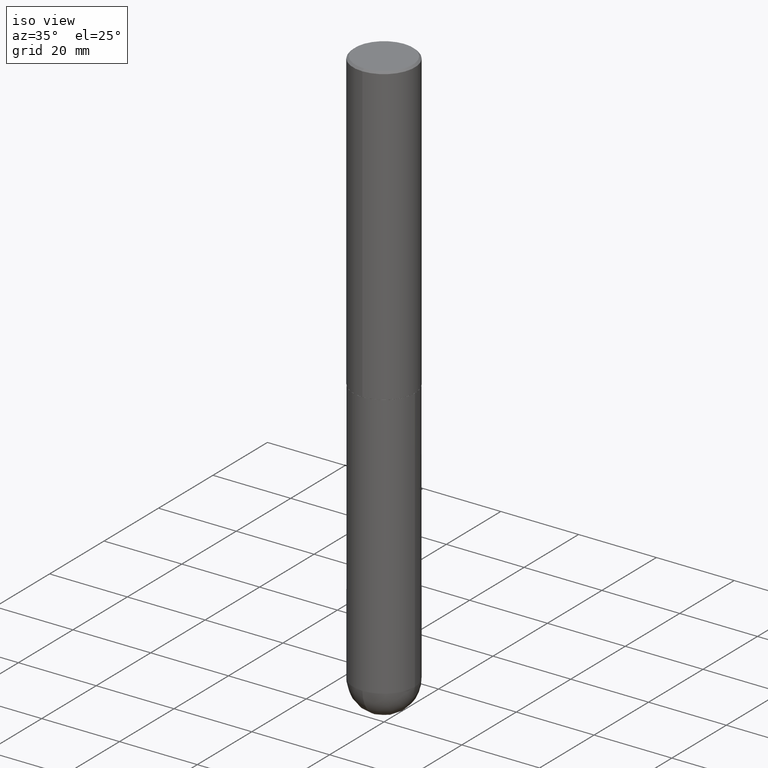
[diagram: clean part render]
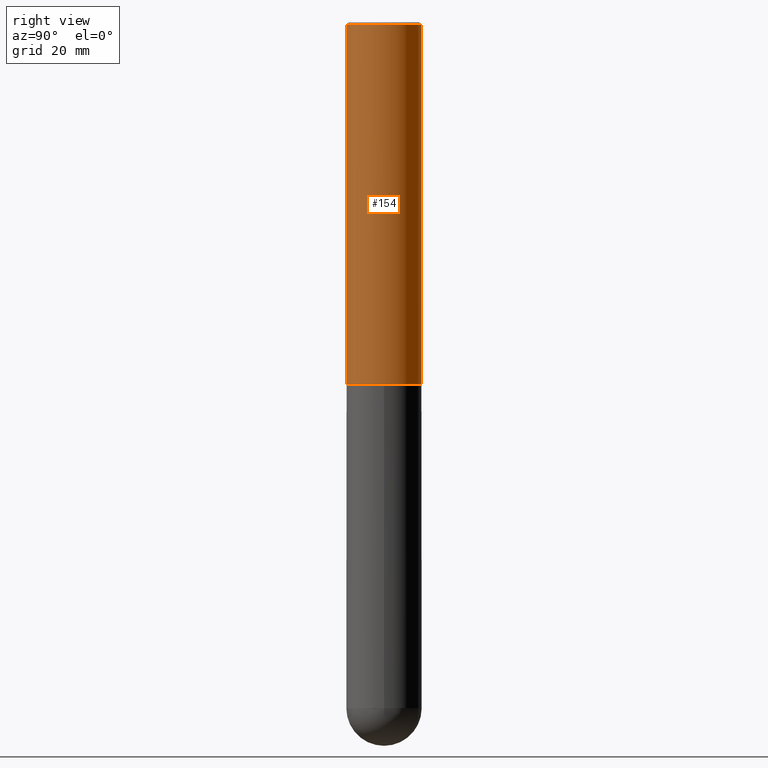
[diagram: tour spotlight — one face highlighted and labeled with its STEP entity id]
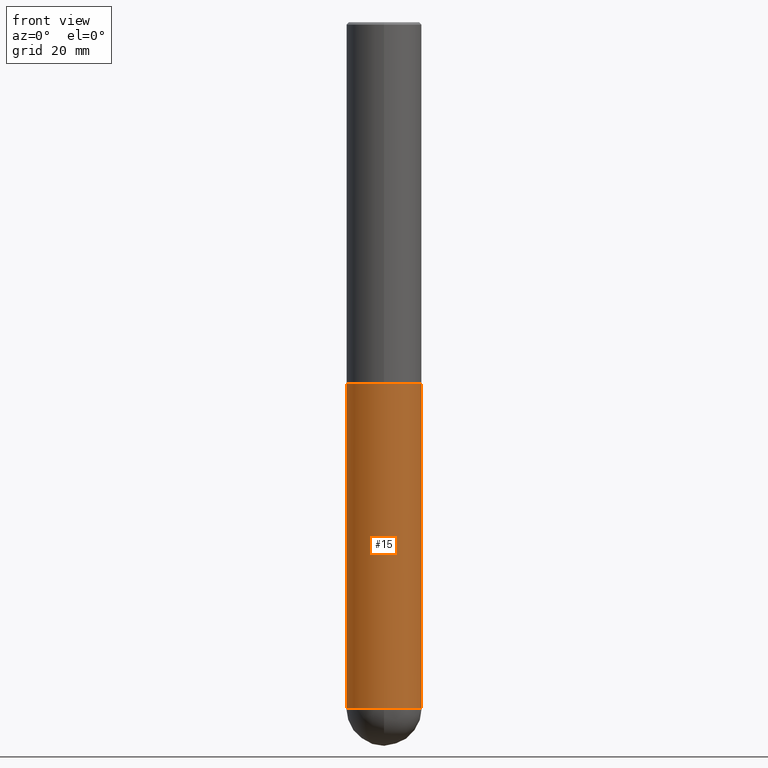
[diagram: tour spotlight — one face highlighted and labeled with its STEP entity id]
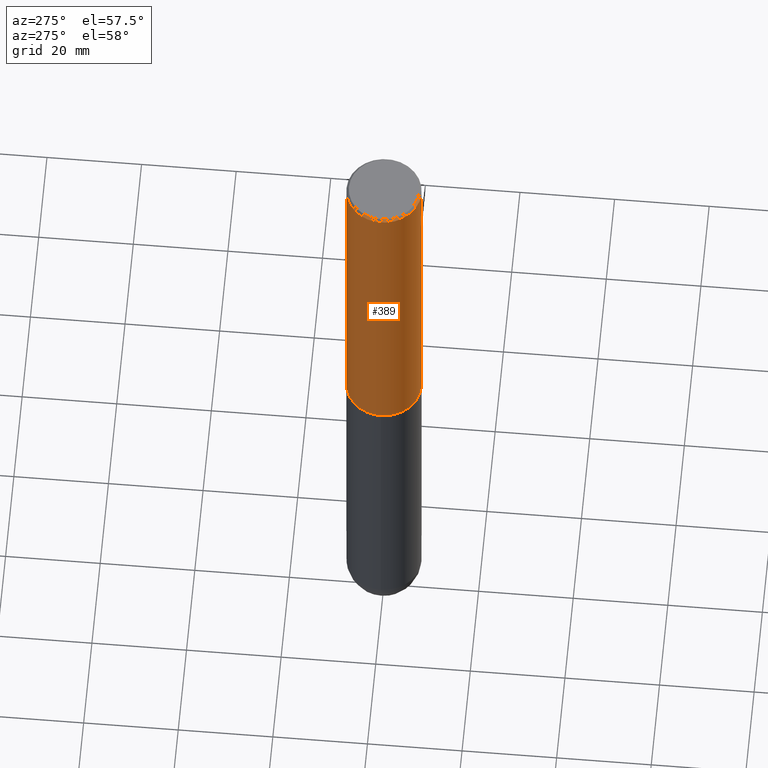
[diagram: tour spotlight — one face highlighted and labeled with its STEP entity id]
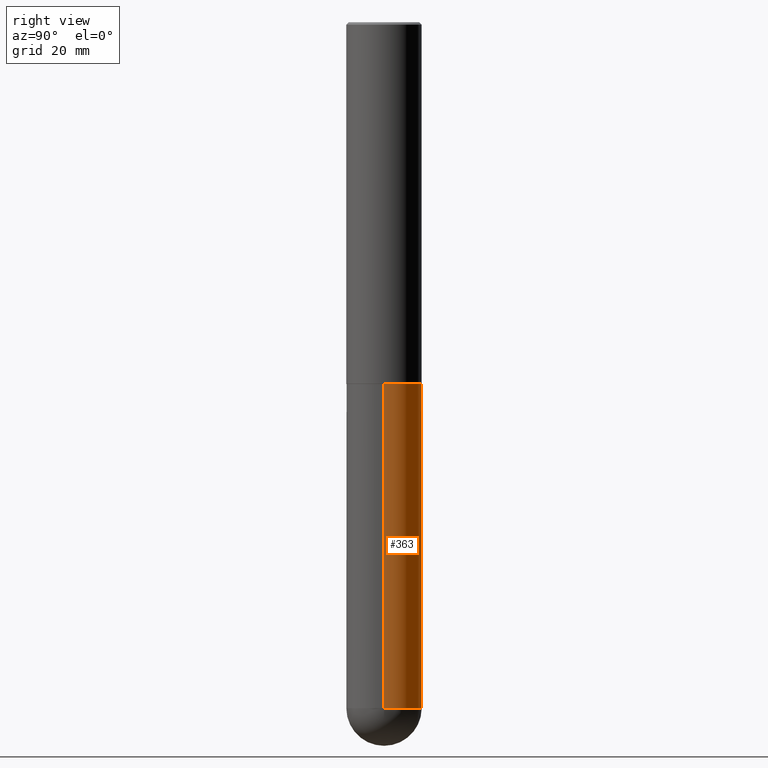
[diagram: tour spotlight — one face highlighted and labeled with its STEP entity id]
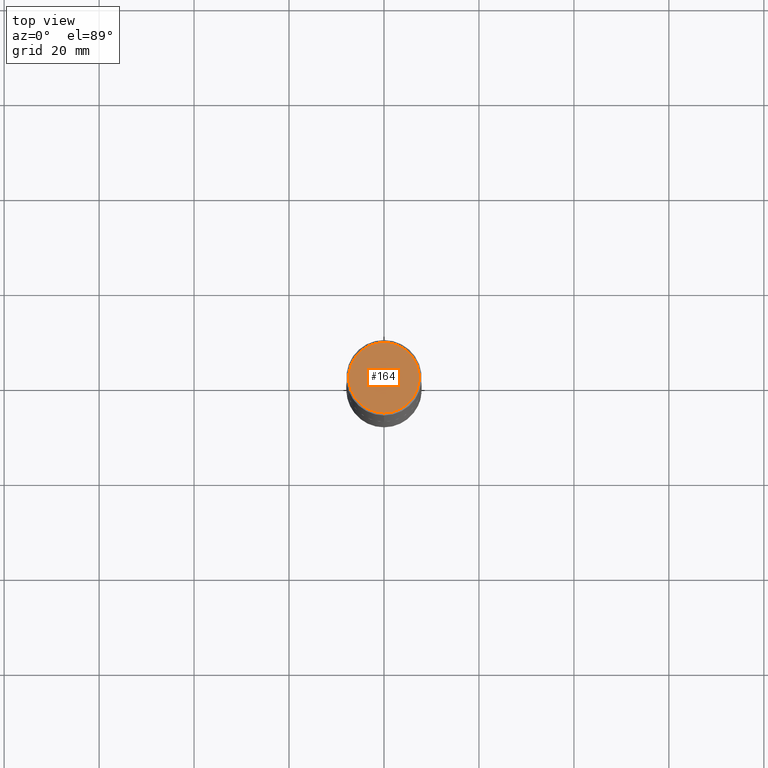
[diagram: tour spotlight — one face highlighted and labeled with its STEP entity id]
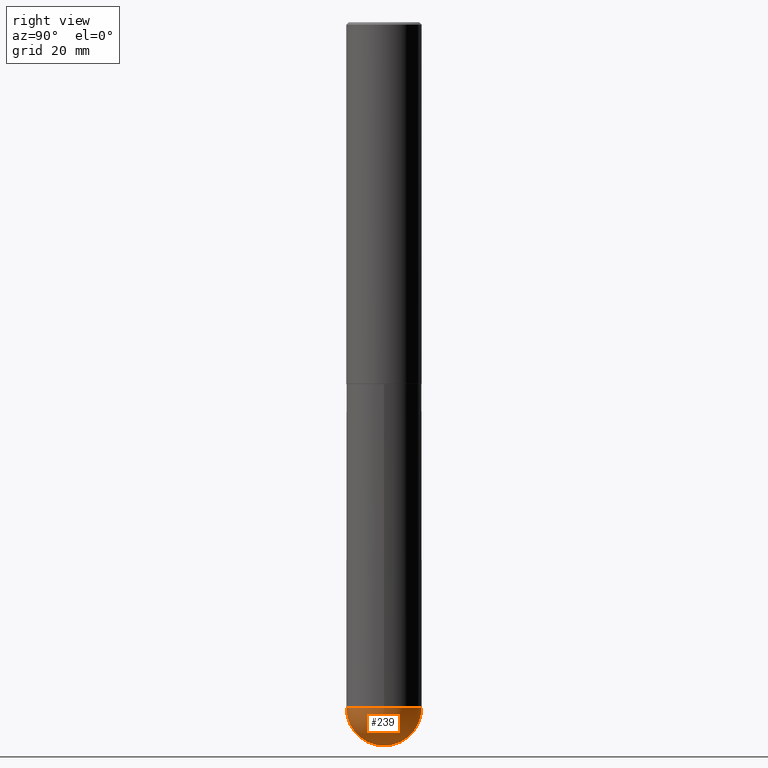
[diagram: tour spotlight — one face highlighted and labeled with its STEP entity id]
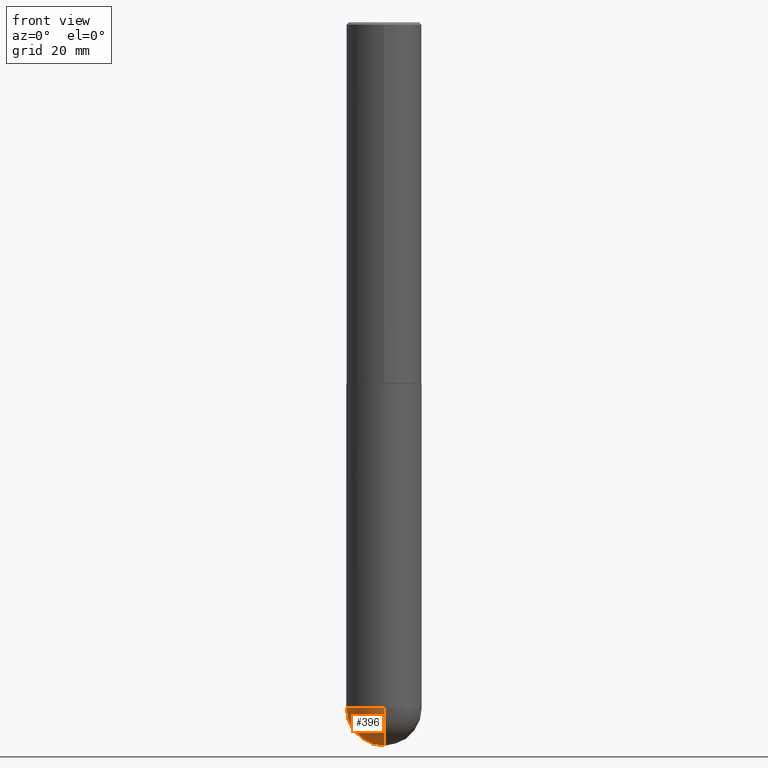
[diagram: tour spotlight — one face highlighted and labeled with its STEP entity id]
A machine part: a face-by-face anatomy tour. The part has 13 B-rep faces; the first image is the clean iso view, then the 7 largest visible faces are spotlighted one at a time (largest first), each with its STEP entity span.

Face 1 — right view, entity #154. In plain terms, the highlighted cylindrical surface (partial cylindrical patch) has radius 7.9375 mm, axis along (-0, 0, 1).
Definition (entity closure, byte-faithful):
#14 = ORIENTED_EDGE ( 'NONE', *, *, #52, .F. ) ;
#16 = VERTEX_POINT ( 'NONE', #67 ) ;
#23 = DIRECTION ( 'NONE',  ( -6.982962677686265133E-15, -1.000000000000000000, 3.496765431890256920E-15 ) ) ;
#26 = LINE ( 'NONE', #377, #30 ) ;
#28 = DIRECTION ( 'NONE',  ( -6.982962677686265922E-15, -1.000000000000000000, 3.496765431890251398E-15 ) ) ;
#30 = VECTOR ( 'NONE', #321, 39.37007874015748143 ) ;
#34 = LINE ( 'NONE', #173, #63 ) ;
#44 = CARTESIAN_POINT ( 'NONE',  ( -2.182175836776888138E-15, -0.3125000000000109357, -2.998999999999999222 ) ) ;
#52 = EDGE_CURVE ( 'NONE', #284, #16, #26, .T. ) ;
#55 = ORIENTED_EDGE ( 'NONE', *, *, #259, .T. ) ;
#63 = VECTOR ( 'NONE', #331, 39.37007874015748143 ) ;
#67 = CARTESIAN_POINT ( 'NONE',  ( -2.143905624303602824E-15, -0.3125000000000000555, -0.01999999999999897693 ) ) ;
#70 = CARTESIAN_POINT ( 'NONE',  ( 2.182175836776958741E-15, 0.3124999999999999445, -0.02000000000000116268 ) ) ;
#114 = CARTESIAN_POINT ( 'NONE',  ( 2.220446049250352524E-15, 0.3124999999999900635, -2.999000000000001442 ) ) ;
#130 = DIRECTION ( 'NONE',  ( -2.445022724150551752E-29, 3.492120153706083922E-15, 1.000000000000000000 ) ) ;
#140 = EDGE_CURVE ( 'NONE', #284, #368, #176, .T. ) ;
#147 = EDGE_CURVE ( 'NONE', #16, #188, #152, .T. ) ;
#152 = CIRCLE ( 'NONE', #379, 0.3125000000000000000 ) ;
#154 = ADVANCED_FACE ( 'NONE', ( #160 ), #286, .T. ) ;
#158 = ORIENTED_EDGE ( 'NONE', *, *, #147, .F. ) ;
#160 = FACE_OUTER_BOUND ( 'NONE', #364, .T. ) ;
#167 = CARTESIAN_POINT ( 'NONE',  ( 4.890045448301120179E-31, -6.984240307412191362E-17, -0.02000000000000006981 ) ) ;
#171 = DIRECTION ( 'NONE',  ( -2.445022724150551752E-29, 3.492120153706083922E-15, 1.000000000000000000 ) ) ;
#173 = CARTESIAN_POINT ( 'NONE',  ( 2.220446049250314659E-15, 0.3125000000000002776, -1.091287548033152310E-15 ) ) ;
#176 = CIRCLE ( 'NONE', #408, 0.3125000000000004996 ) ;
#188 = VERTEX_POINT ( 'NONE', #70 ) ;
#228 = CARTESIAN_POINT ( 'NONE',  ( 7.332623149727504925E-29, -1.047286834096454774E-14, -2.999000000000000554 ) ) ;
#259 = EDGE_CURVE ( 'NONE', #368, #188, #34, .T. ) ;
#284 = VERTEX_POINT ( 'NONE', #44 ) ;
#285 = AXIS2_PLACEMENT_3D ( 'NONE', #347, #405, #390 ) ;
#286 = CYLINDRICAL_SURFACE ( 'NONE', #285, 0.3125000000000002776 ) ;
#321 = DIRECTION ( 'NONE',  ( -2.445022724150551752E-29, 3.492120153706083922E-15, 1.000000000000000000 ) ) ;
#331 = DIRECTION ( 'NONE',  ( -2.445022724150551752E-29, 3.492120153706083922E-15, 1.000000000000000000 ) ) ;
#341 = ORIENTED_EDGE ( 'NONE', *, *, #140, .T. ) ;
#347 = CARTESIAN_POINT ( 'NONE',  ( 0.000000000000000000, 0.000000000000000000, 0.000000000000000000 ) ) ;
#364 = EDGE_LOOP ( 'NONE', ( #341, #55, #158, #14 ) ) ;
#368 = VERTEX_POINT ( 'NONE', #114 ) ;
#377 = CARTESIAN_POINT ( 'NONE',  ( -2.182175836776959925E-15, -0.3125000000000002776, 1.091287548033152310E-15 ) ) ;
#379 = AXIS2_PLACEMENT_3D ( 'NONE', #167, #130, #23 ) ;
#390 = DIRECTION ( 'NONE',  ( -6.982962677686265922E-15, -1.000000000000000000, 3.492120153706084316E-15 ) ) ;
#405 = DIRECTION ( 'NONE',  ( -2.445022724150551752E-29, 3.492120153706083922E-15, 1.000000000000000000 ) ) ;
#408 = AXIS2_PLACEMENT_3D ( 'NONE', #228, #171, #28 ) ;

Face 2 — front view, entity #15. In plain terms, the highlighted cylindrical surface (partial cylindrical patch) has radius 7.9375 mm, axis along (-0, 0, 1).
Definition (entity closure, byte-faithful):
#10 = EDGE_CURVE ( 'NONE', #212, #243, #225, .T. ) ;
#12 = VERTEX_POINT ( 'NONE', #316 ) ;
#15 = ADVANCED_FACE ( 'NONE', ( #351 ), #345, .T. ) ;
#18 = ORIENTED_EDGE ( 'NONE', *, *, #409, .F. ) ;
#41 = CARTESIAN_POINT ( 'NONE',  ( -2.220446049250179369E-15, -0.3125000000000206501, -5.687499999999999112 ) ) ;
#61 = DIRECTION ( 'NONE',  ( 1.000000000000000000, -6.982962677686266711E-15, 4.876176775795936353E-29 ) ) ;
#68 = CARTESIAN_POINT ( 'NONE',  ( -0.3125000000000000000, -1.294567601634960147E-14, -5.687500000000000000 ) ) ;
#73 = AXIS2_PLACEMENT_3D ( 'NONE', #382, #254, #61 ) ;
#75 = CARTESIAN_POINT ( 'NONE',  ( 0.3125000000000000000, -1.734829790237687290E-14, -5.687500000000000000 ) ) ;
#90 = EDGE_CURVE ( 'NONE', #179, #326, #128, .T. ) ;
#115 = EDGE_CURVE ( 'NONE', #243, #12, #411, .T. ) ;
#127 = DIRECTION ( 'NONE',  ( -2.445468806185136597E-29, 3.491481338843145583E-15, 1.000000000000000000 ) ) ;
#128 = LINE ( 'NONE', #255, #349 ) ;
#155 = CARTESIAN_POINT ( 'NONE',  ( 7.336406418555409790E-29, -1.047444401652943635E-14, -3.000000000000000444 ) ) ;
#161 = AXIS2_PLACEMENT_3D ( 'NONE', #155, #303, #246 ) ;
#179 = VERTEX_POINT ( 'NONE', #68 ) ;
#190 = AXIS2_PLACEMENT_3D ( 'NONE', #388, #230, #206 ) ;
#191 = EDGE_CURVE ( 'NONE', #179, #212, #266, .T. ) ;
#206 = DIRECTION ( 'NONE',  ( 1.000000000000000000, -6.982962677686262766E-15, 0.000000000000000000 ) ) ;
#212 = VERTEX_POINT ( 'NONE', #41 ) ;
#216 = EDGE_LOOP ( 'NONE', ( #282, #221, #308, #309, #18 ) ) ;
#221 = ORIENTED_EDGE ( 'NONE', *, *, #191, .T. ) ;
#222 = CARTESIAN_POINT ( 'NONE',  ( 1.390860383517796215E-28, -1.985780011467039117E-14, -5.687500000000000000 ) ) ;
#225 = CIRCLE ( 'NONE', #250, 0.3125000000000000000 ) ;
#227 = DIRECTION ( 'NONE',  ( -2.445468806185136877E-29, 3.491481338843145188E-15, 1.000000000000000000 ) ) ;
#230 = DIRECTION ( 'NONE',  ( -2.445468806185136597E-29, 3.491481338843145583E-15, 1.000000000000000000 ) ) ;
#243 = VERTEX_POINT ( 'NONE', #75 ) ;
#246 = DIRECTION ( 'NONE',  ( 1.000000000000000000, -6.982962677686269077E-15, 0.000000000000000000 ) ) ;
#250 = AXIS2_PLACEMENT_3D ( 'NONE', #222, #127, #412 ) ;
#254 = DIRECTION ( 'NONE',  ( -2.445468806185136597E-29, 3.491481338843145583E-15, 1.000000000000000000 ) ) ;
#255 = CARTESIAN_POINT ( 'NONE',  ( -0.3125000000000000000, 2.220446049250313081E-15, -1.537167215704658232E-29 ) ) ;
#258 = CARTESIAN_POINT ( 'NONE',  ( 0.3125000000000000000, -2.182175836776958347E-15, 1.523805242436230075E-29 ) ) ;
#261 = CARTESIAN_POINT ( 'NONE',  ( -0.3125000000000000000, -1.294567601634960147E-14, -3.000000000000000444 ) ) ;
#266 = CIRCLE ( 'NONE', #190, 0.3125000000000000000 ) ;
#282 = ORIENTED_EDGE ( 'NONE', *, *, #90, .F. ) ;
#289 = VECTOR ( 'NONE', #227, 39.37007874015748143 ) ;
#303 = DIRECTION ( 'NONE',  ( -2.445468806185136597E-29, 3.491481338843145583E-15, 1.000000000000000000 ) ) ;
#308 = ORIENTED_EDGE ( 'NONE', *, *, #10, .T. ) ;
#309 = ORIENTED_EDGE ( 'NONE', *, *, #115, .T. ) ;
#316 = CARTESIAN_POINT ( 'NONE',  ( 0.3125000000000000000, -1.265661985330639628E-14, -3.000000000000000444 ) ) ;
#318 = DIRECTION ( 'NONE',  ( -2.445468806185136877E-29, 3.491481338843145188E-15, 1.000000000000000000 ) ) ;
#326 = VERTEX_POINT ( 'NONE', #261 ) ;
#345 = CYLINDRICAL_SURFACE ( 'NONE', #73, 0.3125000000000000000 ) ;
#349 = VECTOR ( 'NONE', #318, 39.37007874015748143 ) ;
#351 = FACE_OUTER_BOUND ( 'NONE', #216, .T. ) ;
#382 = CARTESIAN_POINT ( 'NONE',  ( 0.000000000000000000, 0.000000000000000000, 0.000000000000000000 ) ) ;
#388 = CARTESIAN_POINT ( 'NONE',  ( 1.390860383517796215E-28, -1.985780011467039117E-14, -5.687500000000000000 ) ) ;
#393 = CIRCLE ( 'NONE', #161, 0.3125000000000000000 ) ;
#409 = EDGE_CURVE ( 'NONE', #326, #12, #393, .T. ) ;
#411 = LINE ( 'NONE', #258, #289 ) ;
#412 = DIRECTION ( 'NONE',  ( 1.000000000000000000, -6.982962677686262766E-15, 0.000000000000000000 ) ) ;

Face 3 — auxiliary view, entity #389. In plain terms, the highlighted cylindrical surface (partial cylindrical patch) has radius 7.9375 mm, axis along (-0, 0, 1).
Definition (entity closure, byte-faithful):
#13 = DIRECTION ( 'NONE',  ( -2.445022724150551752E-29, 3.492120153706083922E-15, 1.000000000000000000 ) ) ;
#16 = VERTEX_POINT ( 'NONE', #67 ) ;
#26 = LINE ( 'NONE', #377, #30 ) ;
#30 = VECTOR ( 'NONE', #321, 39.37007874015748143 ) ;
#34 = LINE ( 'NONE', #173, #63 ) ;
#39 = AXIS2_PLACEMENT_3D ( 'NONE', #358, #205, #103 ) ;
#44 = CARTESIAN_POINT ( 'NONE',  ( -2.182175836776888138E-15, -0.3125000000000109357, -2.998999999999999222 ) ) ;
#49 = FACE_OUTER_BOUND ( 'NONE', #142, .T. ) ;
#51 = CYLINDRICAL_SURFACE ( 'NONE', #97, 0.3125000000000002776 ) ;
#52 = EDGE_CURVE ( 'NONE', #284, #16, #26, .T. ) ;
#63 = VECTOR ( 'NONE', #331, 39.37007874015748143 ) ;
#67 = CARTESIAN_POINT ( 'NONE',  ( -2.143905624303602824E-15, -0.3125000000000000555, -0.01999999999999897693 ) ) ;
#70 = CARTESIAN_POINT ( 'NONE',  ( 2.182175836776958741E-15, 0.3124999999999999445, -0.02000000000000116268 ) ) ;
#78 = DIRECTION ( 'NONE',  ( -6.982962677686265922E-15, -1.000000000000000000, 3.492120153706084316E-15 ) ) ;
#97 = AXIS2_PLACEMENT_3D ( 'NONE', #365, #13, #78 ) ;
#103 = DIRECTION ( 'NONE',  ( -6.982962677686265922E-15, -1.000000000000000000, 3.496765431890251398E-15 ) ) ;
#106 = CIRCLE ( 'NONE', #39, 0.3125000000000004996 ) ;
#109 = CARTESIAN_POINT ( 'NONE',  ( 4.890045448301120179E-31, -6.984240307412191362E-17, -0.02000000000000006981 ) ) ;
#114 = CARTESIAN_POINT ( 'NONE',  ( 2.220446049250352524E-15, 0.3124999999999900635, -2.999000000000001442 ) ) ;
#142 = EDGE_LOOP ( 'NONE', ( #166, #241, #398, #278 ) ) ;
#166 = ORIENTED_EDGE ( 'NONE', *, *, #259, .F. ) ;
#173 = CARTESIAN_POINT ( 'NONE',  ( 2.220446049250314659E-15, 0.3125000000000002776, -1.091287548033152310E-15 ) ) ;
#175 = DIRECTION ( 'NONE',  ( -6.982962677686265133E-15, -1.000000000000000000, 3.496765431890256920E-15 ) ) ;
#183 = CIRCLE ( 'NONE', #245, 0.3125000000000000000 ) ;
#188 = VERTEX_POINT ( 'NONE', #70 ) ;
#205 = DIRECTION ( 'NONE',  ( -2.445022724150551752E-29, 3.492120153706083922E-15, 1.000000000000000000 ) ) ;
#209 = DIRECTION ( 'NONE',  ( -2.445022724150551752E-29, 3.492120153706083922E-15, 1.000000000000000000 ) ) ;
#210 = EDGE_CURVE ( 'NONE', #188, #16, #183, .T. ) ;
#234 = EDGE_CURVE ( 'NONE', #368, #284, #106, .T. ) ;
#241 = ORIENTED_EDGE ( 'NONE', *, *, #234, .T. ) ;
#245 = AXIS2_PLACEMENT_3D ( 'NONE', #109, #209, #175 ) ;
#259 = EDGE_CURVE ( 'NONE', #368, #188, #34, .T. ) ;
#278 = ORIENTED_EDGE ( 'NONE', *, *, #210, .F. ) ;
#284 = VERTEX_POINT ( 'NONE', #44 ) ;
#321 = DIRECTION ( 'NONE',  ( -2.445022724150551752E-29, 3.492120153706083922E-15, 1.000000000000000000 ) ) ;
#331 = DIRECTION ( 'NONE',  ( -2.445022724150551752E-29, 3.492120153706083922E-15, 1.000000000000000000 ) ) ;
#358 = CARTESIAN_POINT ( 'NONE',  ( 7.332623149727504925E-29, -1.047286834096454774E-14, -2.999000000000000554 ) ) ;
#365 = CARTESIAN_POINT ( 'NONE',  ( 0.000000000000000000, 0.000000000000000000, 0.000000000000000000 ) ) ;
#368 = VERTEX_POINT ( 'NONE', #114 ) ;
#377 = CARTESIAN_POINT ( 'NONE',  ( -2.182175836776959925E-15, -0.3125000000000002776, 1.091287548033152310E-15 ) ) ;
#389 = ADVANCED_FACE ( 'NONE', ( #49 ), #51, .T. ) ;
#398 = ORIENTED_EDGE ( 'NONE', *, *, #52, .T. ) ;

Face 4 — right view, entity #363. In plain terms, the highlighted cylindrical surface (partial cylindrical patch) has radius 7.9375 mm, axis along (-0, 0, 1).
Definition (entity closure, byte-faithful):
#2 = FACE_OUTER_BOUND ( 'NONE', #50, .T. ) ;
#6 = EDGE_CURVE ( 'NONE', #12, #326, #279, .T. ) ;
#12 = VERTEX_POINT ( 'NONE', #316 ) ;
#37 = CARTESIAN_POINT ( 'NONE',  ( 2.182175836777099159E-15, 0.3124999999999804601, -5.687500000000000888 ) ) ;
#43 = ORIENTED_EDGE ( 'NONE', *, *, #6, .F. ) ;
#50 = EDGE_LOOP ( 'NONE', ( #123, #304, #43, #92, #119 ) ) ;
#59 = DIRECTION ( 'NONE',  ( -2.445468806185136597E-29, 3.491481338843145583E-15, 1.000000000000000000 ) ) ;
#68 = CARTESIAN_POINT ( 'NONE',  ( -0.3125000000000000000, -1.294567601634960147E-14, -5.687500000000000000 ) ) ;
#75 = CARTESIAN_POINT ( 'NONE',  ( 0.3125000000000000000, -1.734829790237687290E-14, -5.687500000000000000 ) ) ;
#79 = DIRECTION ( 'NONE',  ( -2.445468806185136597E-29, 3.491481338843145583E-15, 1.000000000000000000 ) ) ;
#90 = EDGE_CURVE ( 'NONE', #179, #326, #128, .T. ) ;
#92 = ORIENTED_EDGE ( 'NONE', *, *, #115, .F. ) ;
#93 = DIRECTION ( 'NONE',  ( 1.000000000000000000, -6.982962677686269077E-15, 0.000000000000000000 ) ) ;
#98 = EDGE_CURVE ( 'NONE', #192, #179, #181, .T. ) ;
#107 = CARTESIAN_POINT ( 'NONE',  ( 0.000000000000000000, 0.000000000000000000, 0.000000000000000000 ) ) ;
#115 = EDGE_CURVE ( 'NONE', #243, #12, #411, .T. ) ;
#119 = ORIENTED_EDGE ( 'NONE', *, *, #170, .T. ) ;
#123 = ORIENTED_EDGE ( 'NONE', *, *, #98, .T. ) ;
#126 = CARTESIAN_POINT ( 'NONE',  ( 1.390860383517796215E-28, -1.985780011467039117E-14, -5.687500000000000000 ) ) ;
#128 = LINE ( 'NONE', #255, #349 ) ;
#170 = EDGE_CURVE ( 'NONE', #243, #192, #334, .T. ) ;
#179 = VERTEX_POINT ( 'NONE', #68 ) ;
#181 = CIRCLE ( 'NONE', #189, 0.3125000000000000000 ) ;
#189 = AXIS2_PLACEMENT_3D ( 'NONE', #126, #59, #381 ) ;
#192 = VERTEX_POINT ( 'NONE', #37 ) ;
#207 = AXIS2_PLACEMENT_3D ( 'NONE', #107, #233, #305 ) ;
#219 = AXIS2_PLACEMENT_3D ( 'NONE', #362, #79, #93 ) ;
#227 = DIRECTION ( 'NONE',  ( -2.445468806185136877E-29, 3.491481338843145188E-15, 1.000000000000000000 ) ) ;
#233 = DIRECTION ( 'NONE',  ( -2.445468806185136597E-29, 3.491481338843145583E-15, 1.000000000000000000 ) ) ;
#243 = VERTEX_POINT ( 'NONE', #75 ) ;
#255 = CARTESIAN_POINT ( 'NONE',  ( -0.3125000000000000000, 2.220446049250313081E-15, -1.537167215704658232E-29 ) ) ;
#258 = CARTESIAN_POINT ( 'NONE',  ( 0.3125000000000000000, -2.182175836776958347E-15, 1.523805242436230075E-29 ) ) ;
#261 = CARTESIAN_POINT ( 'NONE',  ( -0.3125000000000000000, -1.294567601634960147E-14, -3.000000000000000444 ) ) ;
#271 = CARTESIAN_POINT ( 'NONE',  ( 1.390860383517796215E-28, -1.985780011467039117E-14, -5.687500000000000000 ) ) ;
#279 = CIRCLE ( 'NONE', #219, 0.3125000000000000000 ) ;
#289 = VECTOR ( 'NONE', #227, 39.37007874015748143 ) ;
#304 = ORIENTED_EDGE ( 'NONE', *, *, #90, .T. ) ;
#305 = DIRECTION ( 'NONE',  ( 1.000000000000000000, -6.982962677686266711E-15, 4.876176775795936353E-29 ) ) ;
#312 = AXIS2_PLACEMENT_3D ( 'NONE', #271, #327, #359 ) ;
#316 = CARTESIAN_POINT ( 'NONE',  ( 0.3125000000000000000, -1.265661985330639628E-14, -3.000000000000000444 ) ) ;
#318 = DIRECTION ( 'NONE',  ( -2.445468806185136877E-29, 3.491481338843145188E-15, 1.000000000000000000 ) ) ;
#326 = VERTEX_POINT ( 'NONE', #261 ) ;
#327 = DIRECTION ( 'NONE',  ( -2.445468806185136597E-29, 3.491481338843145583E-15, 1.000000000000000000 ) ) ;
#334 = CIRCLE ( 'NONE', #312, 0.3125000000000000000 ) ;
#349 = VECTOR ( 'NONE', #318, 39.37007874015748143 ) ;
#359 = DIRECTION ( 'NONE',  ( 1.000000000000000000, -6.982962677686262766E-15, 0.000000000000000000 ) ) ;
#362 = CARTESIAN_POINT ( 'NONE',  ( 7.336406418555409790E-29, -1.047444401652943635E-14, -3.000000000000000444 ) ) ;
#363 = ADVANCED_FACE ( 'NONE', ( #2 ), #387, .T. ) ;
#381 = DIRECTION ( 'NONE',  ( 1.000000000000000000, -6.982962677686262766E-15, 0.000000000000000000 ) ) ;
#387 = CYLINDRICAL_SURFACE ( 'NONE', #207, 0.3125000000000000000 ) ;
#411 = LINE ( 'NONE', #258, #289 ) ;

Face 5 — top view, entity #164. In plain terms, the highlighted planar face has unit normal (0, -0, -1).
Definition (entity closure, byte-faithful):
#3 = EDGE_LOOP ( 'NONE', ( #315, #80 ) ) ;
#45 = AXIS2_PLACEMENT_3D ( 'NONE', #229, #353, #287 ) ;
#80 = ORIENTED_EDGE ( 'NONE', *, *, #122, .T. ) ;
#82 = EDGE_CURVE ( 'NONE', #256, #156, #143, .T. ) ;
#99 = DIRECTION ( 'NONE',  ( -6.982962677686265922E-15, -1.000000000000000000, 3.492120153706083922E-15 ) ) ;
#108 = DIRECTION ( 'NONE',  ( 2.445022724150551191E-29, -3.492120153706083922E-15, -1.000000000000000000 ) ) ;
#122 = EDGE_CURVE ( 'NONE', #156, #256, #373, .T. ) ;
#124 = AXIS2_PLACEMENT_3D ( 'NONE', #268, #108, #384 ) ;
#138 = CARTESIAN_POINT ( 'NONE',  ( -2.075300644325891437E-15, -0.2925000000000010369, -4.122761172855970597E-17 ) ) ;
#139 = FACE_OUTER_BOUND ( 'NONE', #3, .T. ) ;
#143 = CIRCLE ( 'NONE', #45, 0.2925000000000010369 ) ;
#156 = VERTEX_POINT ( 'NONE', #138 ) ;
#164 = ADVANCED_FACE ( 'NONE', ( #139 ), #269, .F. ) ;
#165 = DIRECTION ( 'NONE',  ( -2.445022724150551752E-29, 3.492120153706083922E-15, 1.000000000000000000 ) ) ;
#198 = CARTESIAN_POINT ( 'NONE',  ( 2.598259038436874655E-44, -3.710980950423145144E-30, -1.062672756687592845E-15 ) ) ;
#208 = CARTESIAN_POINT ( 'NONE',  ( 2.112346210000098993E-15, 0.2925000000000010369, -2.084117901646626065E-15 ) ) ;
#229 = CARTESIAN_POINT ( 'NONE',  ( 2.598259038436874655E-44, -3.710980950423145144E-30, -1.062672756687592845E-15 ) ) ;
#256 = VERTEX_POINT ( 'NONE', #208 ) ;
#268 = CARTESIAN_POINT ( 'NONE',  ( 2.042516583223240034E-15, 0.2925000000000010369, -1.552781523302829741E-15 ) ) ;
#269 = PLANE ( 'NONE',  #124 ) ;
#287 = DIRECTION ( 'NONE',  ( -6.982962677686265922E-15, -1.000000000000000000, 3.492120153706083922E-15 ) ) ;
#315 = ORIENTED_EDGE ( 'NONE', *, *, #82, .T. ) ;
#353 = DIRECTION ( 'NONE',  ( -2.445022724150551752E-29, 3.492120153706083922E-15, 1.000000000000000000 ) ) ;
#373 = CIRCLE ( 'NONE', #403, 0.2925000000000010369 ) ;
#384 = DIRECTION ( 'NONE',  ( 6.982962677686265922E-15, 1.000000000000000000, -3.492120153706083922E-15 ) ) ;
#403 = AXIS2_PLACEMENT_3D ( 'NONE', #198, #165, #99 ) ;

Face 6 — right view, entity #239. In plain terms, the highlighted spherical surface has radius 7.9375 mm.
Definition (entity closure, byte-faithful):
#10 = EDGE_CURVE ( 'NONE', #212, #243, #225, .T. ) ;
#37 = CARTESIAN_POINT ( 'NONE',  ( 2.182175836777099159E-15, 0.3124999999999804601, -5.687500000000000888 ) ) ;
#41 = CARTESIAN_POINT ( 'NONE',  ( -2.220446049250179369E-15, -0.3125000000000206501, -5.687499999999999112 ) ) ;
#42 = EDGE_CURVE ( 'NONE', #336, #212, #244, .T. ) ;
#48 = ORIENTED_EDGE ( 'NONE', *, *, #10, .F. ) ;
#57 = ORIENTED_EDGE ( 'NONE', *, *, #170, .F. ) ;
#72 = SPHERICAL_SURFACE ( 'NONE', #117, 0.3125000000000011102 ) ;
#75 = CARTESIAN_POINT ( 'NONE',  ( 0.3125000000000000000, -1.734829790237687290E-14, -5.687500000000000000 ) ) ;
#77 = DIRECTION ( 'NONE',  ( -1.000000000000000000, 6.982962677686265922E-15, -4.883557194083112901E-29 ) ) ;
#113 = ORIENTED_EDGE ( 'NONE', *, *, #277, .T. ) ;
#117 = AXIS2_PLACEMENT_3D ( 'NONE', #177, #77, #236 ) ;
#127 = DIRECTION ( 'NONE',  ( -2.445468806185136597E-29, 3.491481338843145583E-15, 1.000000000000000000 ) ) ;
#170 = EDGE_CURVE ( 'NONE', #243, #192, #334, .T. ) ;
#177 = CARTESIAN_POINT ( 'NONE',  ( 1.357748405726407927E-28, -2.033198248281044304E-14, -5.687500000000000000 ) ) ;
#192 = VERTEX_POINT ( 'NONE', #37 ) ;
#197 = DIRECTION ( 'NONE',  ( -7.105427357601000281E-15, -1.000000000000000000, 0.000000000000000000 ) ) ;
#212 = VERTEX_POINT ( 'NONE', #41 ) ;
#215 = ORIENTED_EDGE ( 'NONE', *, *, #42, .F. ) ;
#222 = CARTESIAN_POINT ( 'NONE',  ( 1.390860383517796215E-28, -1.985780011467039117E-14, -5.687500000000000000 ) ) ;
#225 = CIRCLE ( 'NONE', #250, 0.3125000000000000000 ) ;
#231 = CIRCLE ( 'NONE', #366, 0.3125000000000011102 ) ;
#236 = DIRECTION ( 'NONE',  ( 6.982962677686265922E-15, 1.000000000000000000, -3.496765431890244692E-15 ) ) ;
#238 = DIRECTION ( 'NONE',  ( 6.982962677686265922E-15, 1.000000000000000000, 0.000000000000000000 ) ) ;
#239 = ADVANCED_FACE ( 'NONE', ( #361 ), #72, .T. ) ;
#243 = VERTEX_POINT ( 'NONE', #75 ) ;
#244 = CIRCLE ( 'NONE', #263, 0.3125000000000011102 ) ;
#250 = AXIS2_PLACEMENT_3D ( 'NONE', #222, #127, #412 ) ;
#263 = AXIS2_PLACEMENT_3D ( 'NONE', #314, #288, #197 ) ;
#264 = CARTESIAN_POINT ( 'NONE',  ( 1.357748405726407927E-28, -2.033198248281044304E-14, -5.687500000000000000 ) ) ;
#271 = CARTESIAN_POINT ( 'NONE',  ( 1.390860383517796215E-28, -1.985780011467039117E-14, -5.687500000000000000 ) ) ;
#277 = EDGE_CURVE ( 'NONE', #336, #192, #231, .T. ) ;
#281 = EDGE_LOOP ( 'NONE', ( #215, #113, #57, #48 ) ) ;
#288 = DIRECTION ( 'NONE',  ( -1.000000000000000000, 7.105427357601001070E-15, -4.926315508542082329E-29 ) ) ;
#293 = CARTESIAN_POINT ( 'NONE',  ( 1.435505503246536289E-28, -2.140393529496225274E-14, -6.000000000000001776 ) ) ;
#312 = AXIS2_PLACEMENT_3D ( 'NONE', #271, #327, #359 ) ;
#314 = CARTESIAN_POINT ( 'NONE',  ( 1.357748405726407927E-28, -2.033198248281044304E-14, -5.687500000000000000 ) ) ;
#327 = DIRECTION ( 'NONE',  ( -2.445468806185136597E-29, 3.491481338843145583E-15, 1.000000000000000000 ) ) ;
#334 = CIRCLE ( 'NONE', #312, 0.3125000000000000000 ) ;
#336 = VERTEX_POINT ( 'NONE', #293 ) ;
#356 = DIRECTION ( 'NONE',  ( 1.000000000000000000, -6.982962677686265922E-15, 4.883557194083112340E-29 ) ) ;
#359 = DIRECTION ( 'NONE',  ( 1.000000000000000000, -6.982962677686262766E-15, 0.000000000000000000 ) ) ;
#361 = FACE_OUTER_BOUND ( 'NONE', #281, .T. ) ;
#366 = AXIS2_PLACEMENT_3D ( 'NONE', #264, #356, #238 ) ;
#412 = DIRECTION ( 'NONE',  ( 1.000000000000000000, -6.982962677686262766E-15, 0.000000000000000000 ) ) ;

Face 7 — front view, entity #396. In plain terms, the highlighted spherical surface has radius 7.9375 mm.
Definition (entity closure, byte-faithful):
#17 = DIRECTION ( 'NONE',  ( 6.982962677686265922E-15, 1.000000000000000000, -3.496765431890244692E-15 ) ) ;
#37 = CARTESIAN_POINT ( 'NONE',  ( 2.182175836777099159E-15, 0.3124999999999804601, -5.687500000000000888 ) ) ;
#41 = CARTESIAN_POINT ( 'NONE',  ( -2.220446049250179369E-15, -0.3125000000000206501, -5.687499999999999112 ) ) ;
#42 = EDGE_CURVE ( 'NONE', #336, #212, #244, .T. ) ;
#59 = DIRECTION ( 'NONE',  ( -2.445468806185136597E-29, 3.491481338843145583E-15, 1.000000000000000000 ) ) ;
#68 = CARTESIAN_POINT ( 'NONE',  ( -0.3125000000000000000, -1.294567601634960147E-14, -5.687500000000000000 ) ) ;
#85 = ORIENTED_EDGE ( 'NONE', *, *, #191, .F. ) ;
#98 = EDGE_CURVE ( 'NONE', #192, #179, #181, .T. ) ;
#126 = CARTESIAN_POINT ( 'NONE',  ( 1.390860383517796215E-28, -1.985780011467039117E-14, -5.687500000000000000 ) ) ;
#137 = ORIENTED_EDGE ( 'NONE', *, *, #42, .T. ) ;
#146 = CARTESIAN_POINT ( 'NONE',  ( 1.357748405726407927E-28, -2.033198248281044304E-14, -5.687500000000000000 ) ) ;
#179 = VERTEX_POINT ( 'NONE', #68 ) ;
#181 = CIRCLE ( 'NONE', #189, 0.3125000000000000000 ) ;
#187 = DIRECTION ( 'NONE',  ( -1.000000000000000000, 6.982962677686265922E-15, -4.883557194083112901E-29 ) ) ;
#189 = AXIS2_PLACEMENT_3D ( 'NONE', #126, #59, #381 ) ;
#190 = AXIS2_PLACEMENT_3D ( 'NONE', #388, #230, #206 ) ;
#191 = EDGE_CURVE ( 'NONE', #179, #212, #266, .T. ) ;
#192 = VERTEX_POINT ( 'NONE', #37 ) ;
#197 = DIRECTION ( 'NONE',  ( -7.105427357601000281E-15, -1.000000000000000000, 0.000000000000000000 ) ) ;
#206 = DIRECTION ( 'NONE',  ( 1.000000000000000000, -6.982962677686262766E-15, 0.000000000000000000 ) ) ;
#212 = VERTEX_POINT ( 'NONE', #41 ) ;
#220 = SPHERICAL_SURFACE ( 'NONE', #380, 0.3125000000000011102 ) ;
#230 = DIRECTION ( 'NONE',  ( -2.445468806185136597E-29, 3.491481338843145583E-15, 1.000000000000000000 ) ) ;
#231 = CIRCLE ( 'NONE', #366, 0.3125000000000011102 ) ;
#238 = DIRECTION ( 'NONE',  ( 6.982962677686265922E-15, 1.000000000000000000, 0.000000000000000000 ) ) ;
#244 = CIRCLE ( 'NONE', #263, 0.3125000000000011102 ) ;
#248 = ORIENTED_EDGE ( 'NONE', *, *, #277, .F. ) ;
#263 = AXIS2_PLACEMENT_3D ( 'NONE', #314, #288, #197 ) ;
#264 = CARTESIAN_POINT ( 'NONE',  ( 1.357748405726407927E-28, -2.033198248281044304E-14, -5.687500000000000000 ) ) ;
#266 = CIRCLE ( 'NONE', #190, 0.3125000000000000000 ) ;
#277 = EDGE_CURVE ( 'NONE', #336, #192, #231, .T. ) ;
#288 = DIRECTION ( 'NONE',  ( -1.000000000000000000, 7.105427357601001070E-15, -4.926315508542082329E-29 ) ) ;
#293 = CARTESIAN_POINT ( 'NONE',  ( 1.435505503246536289E-28, -2.140393529496225274E-14, -6.000000000000001776 ) ) ;
#314 = CARTESIAN_POINT ( 'NONE',  ( 1.357748405726407927E-28, -2.033198248281044304E-14, -5.687500000000000000 ) ) ;
#336 = VERTEX_POINT ( 'NONE', #293 ) ;
#337 = FACE_OUTER_BOUND ( 'NONE', #338, .T. ) ;
#338 = EDGE_LOOP ( 'NONE', ( #248, #137, #85, #370 ) ) ;
#356 = DIRECTION ( 'NONE',  ( 1.000000000000000000, -6.982962677686265922E-15, 4.883557194083112340E-29 ) ) ;
#366 = AXIS2_PLACEMENT_3D ( 'NONE', #264, #356, #238 ) ;
#370 = ORIENTED_EDGE ( 'NONE', *, *, #98, .F. ) ;
#380 = AXIS2_PLACEMENT_3D ( 'NONE', #146, #187, #17 ) ;
#381 = DIRECTION ( 'NONE',  ( 1.000000000000000000, -6.982962677686262766E-15, 0.000000000000000000 ) ) ;
#388 = CARTESIAN_POINT ( 'NONE',  ( 1.390860383517796215E-28, -1.985780011467039117E-14, -5.687500000000000000 ) ) ;
#396 = ADVANCED_FACE ( 'NONE', ( #337 ), #220, .T. ) ;